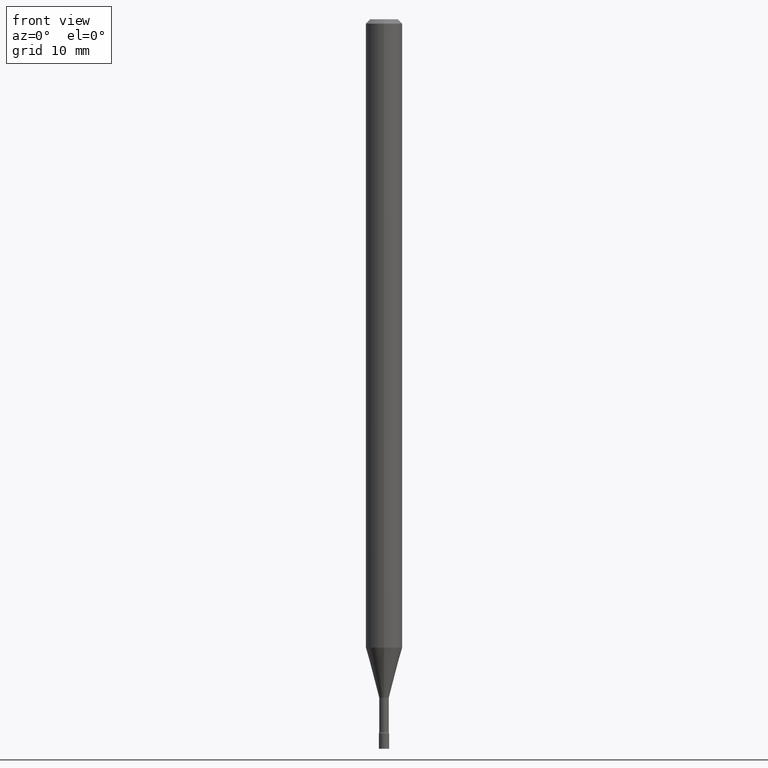
[diagram: clean part render]
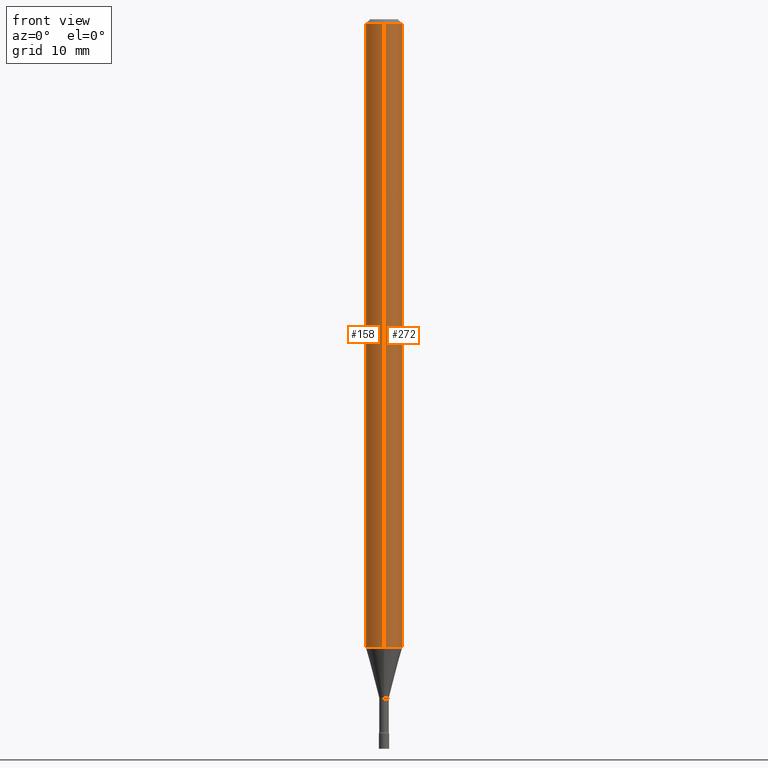
[diagram: same view with one multi-face feature highlighted, each face labeled with its STEP entity id]
A machine part, front view. The highlighted faces form ONE feature: a constant-radius fillet chain: 2 tangent blend faces with common blend radius 1.5875 mm. The faces share edges in the B-rep.
Their STEP definitions:
[1] entity #272 (Cylinder):
#1 = DIRECTION ( 'NONE',  ( -6.982962677686265922E-15, -1.000000000000000000, 3.491470771135924375E-15 ) ) ;
#3 = CARTESIAN_POINT ( 'NONE',  ( -4.364351673553912750E-16, -0.06250000000000005551, -0.01499999999999981209 ) ) ;
#8 = DIRECTION ( 'NONE',  ( -6.982962677686265922E-15, -1.000000000000000000, 4.370956789862821150E-15 ) ) ;
#14 = CIRCLE ( 'NONE', #182, 0.06250000000000000000 ) ;
#29 = AXIS2_PLACEMENT_3D ( 'NONE', #479, #399, #1 ) ;
#32 = ORIENTED_EDGE ( 'NONE', *, *, #418, .T. ) ;
#35 = CARTESIAN_POINT ( 'NONE',  ( 4.440892098501149768E-16, 0.06249999999999247130, -2.153139060311453967 ) ) ;
#36 = DIRECTION ( 'NONE',  ( -6.982962677686265922E-15, -1.000000000000000000, 3.483106191921935554E-15 ) ) ;
#50 = CARTESIAN_POINT ( 'NONE',  ( 4.440892098500625669E-16, 0.06250000000000000000, -2.182169231959952734E-16 ) ) ;
#52 = VERTEX_POINT ( 'NONE', #313 ) ;
#92 = CARTESIAN_POINT ( 'NONE',  ( -4.364351673553390622E-16, -0.06250000000000753564, -2.153139060311453079 ) ) ;
#140 = DIRECTION ( 'NONE',  ( -2.445476185575647876E-29, 3.491470771135924769E-15, 1.000000000000000000 ) ) ;
#154 = LINE ( 'NONE', #465, #173 ) ;
#173 = VECTOR ( 'NONE', #426, 39.37007874015748143 ) ;
#182 = AXIS2_PLACEMENT_3D ( 'NONE', #444, #140, #8 ) ;
#187 = EDGE_CURVE ( 'NONE', #477, #342, #154, .T. ) ;
#197 = EDGE_LOOP ( 'NONE', ( #32, #510, #330, #308 ) ) ;
#211 = EDGE_CURVE ( 'NONE', #342, #52, #349, .T. ) ;
#221 = DIRECTION ( 'NONE',  ( -2.445476185575647596E-29, 3.491470771135924375E-15, 1.000000000000000000 ) ) ;
#226 = VERTEX_POINT ( 'NONE', #35 ) ;
#240 = DIRECTION ( 'NONE',  ( -2.445476185575647876E-29, 3.491470771135924769E-15, 1.000000000000000000 ) ) ;
#272 = ADVANCED_FACE ( 'NONE', ( #355 ), #471, .T. ) ;
#273 = CARTESIAN_POINT ( 'NONE',  ( 3.668214278363478611E-31, -5.237206156703897582E-17, -0.01500000000000003067 ) ) ;
#308 = ORIENTED_EDGE ( 'NONE', *, *, #187, .F. ) ;
#313 = CARTESIAN_POINT ( 'NONE',  ( 4.440892098501155685E-16, 0.06249999999999993755, -0.01500000000000024751 ) ) ;
#330 = ORIENTED_EDGE ( 'NONE', *, *, #211, .F. ) ;
#342 = VERTEX_POINT ( 'NONE', #3 ) ;
#349 = CIRCLE ( 'NONE', #369, 0.06250000000000000000 ) ;
#355 = FACE_OUTER_BOUND ( 'NONE', #197, .T. ) ;
#369 = AXIS2_PLACEMENT_3D ( 'NONE', #273, #240, #36 ) ;
#399 = DIRECTION ( 'NONE',  ( -2.445476185575647876E-29, 3.491470771135924769E-15, 1.000000000000000000 ) ) ;
#418 = EDGE_CURVE ( 'NONE', #477, #226, #14, .T. ) ;
#426 = DIRECTION ( 'NONE',  ( -2.445476185575647596E-29, 3.491470771135924375E-15, 1.000000000000000000 ) ) ;
#444 = CARTESIAN_POINT ( 'NONE',  ( 5.265450296224388314E-29, -7.517622095268511377E-15, -2.153139060311453523 ) ) ;
#451 = LINE ( 'NONE', #50, #464 ) ;
#464 = VECTOR ( 'NONE', #221, 39.37007874015748143 ) ;
#465 = CARTESIAN_POINT ( 'NONE',  ( -4.364351673553916201E-16, -0.06250000000000000000, 2.182169231959952734E-16 ) ) ;
#471 = CYLINDRICAL_SURFACE ( 'NONE', #29, 0.06250000000000000000 ) ;
#473 = EDGE_CURVE ( 'NONE', #226, #52, #451, .T. ) ;
#477 = VERTEX_POINT ( 'NONE', #92 ) ;
#479 = CARTESIAN_POINT ( 'NONE',  ( 0.000000000000000000, 0.000000000000000000, 0.000000000000000000 ) ) ;
#510 = ORIENTED_EDGE ( 'NONE', *, *, #473, .T. ) ;
[2] entity #158 (Cylinder):
#3 = CARTESIAN_POINT ( 'NONE',  ( -4.364351673553912750E-16, -0.06250000000000005551, -0.01499999999999981209 ) ) ;
#35 = CARTESIAN_POINT ( 'NONE',  ( 4.440892098501149768E-16, 0.06249999999999247130, -2.153139060311453967 ) ) ;
#50 = CARTESIAN_POINT ( 'NONE',  ( 4.440892098500625669E-16, 0.06250000000000000000, -2.182169231959952734E-16 ) ) ;
#52 = VERTEX_POINT ( 'NONE', #313 ) ;
#57 = AXIS2_PLACEMENT_3D ( 'NONE', #119, #470, #232 ) ;
#92 = CARTESIAN_POINT ( 'NONE',  ( -4.364351673553390622E-16, -0.06250000000000753564, -2.153139060311453079 ) ) ;
#97 = EDGE_LOOP ( 'NONE', ( #122, #250, #362, #446 ) ) ;
#119 = CARTESIAN_POINT ( 'NONE',  ( 0.000000000000000000, 0.000000000000000000, 0.000000000000000000 ) ) ;
#122 = ORIENTED_EDGE ( 'NONE', *, *, #473, .F. ) ;
#154 = LINE ( 'NONE', #465, #173 ) ;
#158 = ADVANCED_FACE ( 'NONE', ( #416 ), #402, .T. ) ;
#172 = CIRCLE ( 'NONE', #227, 0.06250000000000000000 ) ;
#173 = VECTOR ( 'NONE', #426, 39.37007874015748143 ) ;
#174 = CARTESIAN_POINT ( 'NONE',  ( 5.265450296224388314E-29, -7.517622095268511377E-15, -2.153139060311453523 ) ) ;
#187 = EDGE_CURVE ( 'NONE', #477, #342, #154, .T. ) ;
#221 = DIRECTION ( 'NONE',  ( -2.445476185575647596E-29, 3.491470771135924375E-15, 1.000000000000000000 ) ) ;
#226 = VERTEX_POINT ( 'NONE', #35 ) ;
#227 = AXIS2_PLACEMENT_3D ( 'NONE', #174, #441, #327 ) ;
#232 = DIRECTION ( 'NONE',  ( -6.982962677686265922E-15, -1.000000000000000000, 3.491470771135924375E-15 ) ) ;
#250 = ORIENTED_EDGE ( 'NONE', *, *, #359, .T. ) ;
#313 = CARTESIAN_POINT ( 'NONE',  ( 4.440892098501155685E-16, 0.06249999999999993755, -0.01500000000000024751 ) ) ;
#327 = DIRECTION ( 'NONE',  ( -6.982962677686265922E-15, -1.000000000000000000, 4.370956789862821150E-15 ) ) ;
#342 = VERTEX_POINT ( 'NONE', #3 ) ;
#359 = EDGE_CURVE ( 'NONE', #226, #477, #172, .T. ) ;
#362 = ORIENTED_EDGE ( 'NONE', *, *, #187, .T. ) ;
#398 = AXIS2_PLACEMENT_3D ( 'NONE', #494, #455, #485 ) ;
#402 = CYLINDRICAL_SURFACE ( 'NONE', #57, 0.06250000000000000000 ) ;
#416 = FACE_OUTER_BOUND ( 'NONE', #97, .T. ) ;
#426 = DIRECTION ( 'NONE',  ( -2.445476185575647596E-29, 3.491470771135924375E-15, 1.000000000000000000 ) ) ;
#428 = EDGE_CURVE ( 'NONE', #52, #342, #488, .T. ) ;
#441 = DIRECTION ( 'NONE',  ( -2.445476185575647876E-29, 3.491470771135924769E-15, 1.000000000000000000 ) ) ;
#446 = ORIENTED_EDGE ( 'NONE', *, *, #428, .F. ) ;
#451 = LINE ( 'NONE', #50, #464 ) ;
#455 = DIRECTION ( 'NONE',  ( -2.445476185575647876E-29, 3.491470771135924769E-15, 1.000000000000000000 ) ) ;
#464 = VECTOR ( 'NONE', #221, 39.37007874015748143 ) ;
#465 = CARTESIAN_POINT ( 'NONE',  ( -4.364351673553916201E-16, -0.06250000000000000000, 2.182169231959952734E-16 ) ) ;
#470 = DIRECTION ( 'NONE',  ( -2.445476185575647876E-29, 3.491470771135924769E-15, 1.000000000000000000 ) ) ;
#473 = EDGE_CURVE ( 'NONE', #226, #52, #451, .T. ) ;
#477 = VERTEX_POINT ( 'NONE', #92 ) ;
#485 = DIRECTION ( 'NONE',  ( -6.982962677686265922E-15, -1.000000000000000000, 3.483106191921935554E-15 ) ) ;
#488 = CIRCLE ( 'NONE', #398, 0.06250000000000000000 ) ;
#494 = CARTESIAN_POINT ( 'NONE',  ( 3.668214278363478611E-31, -5.237206156703897582E-17, -0.01500000000000003067 ) ) ;